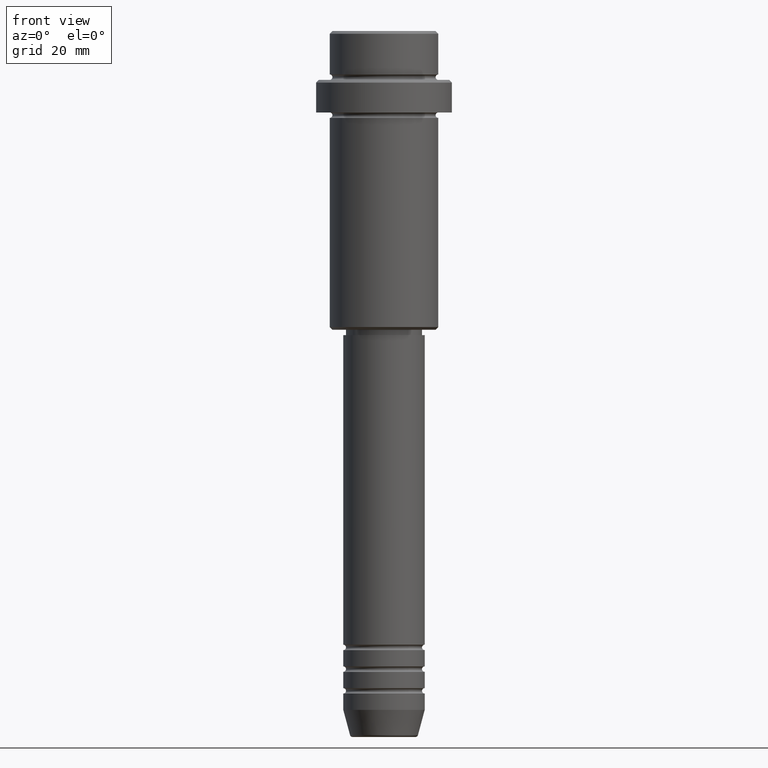
[diagram: clean part render]
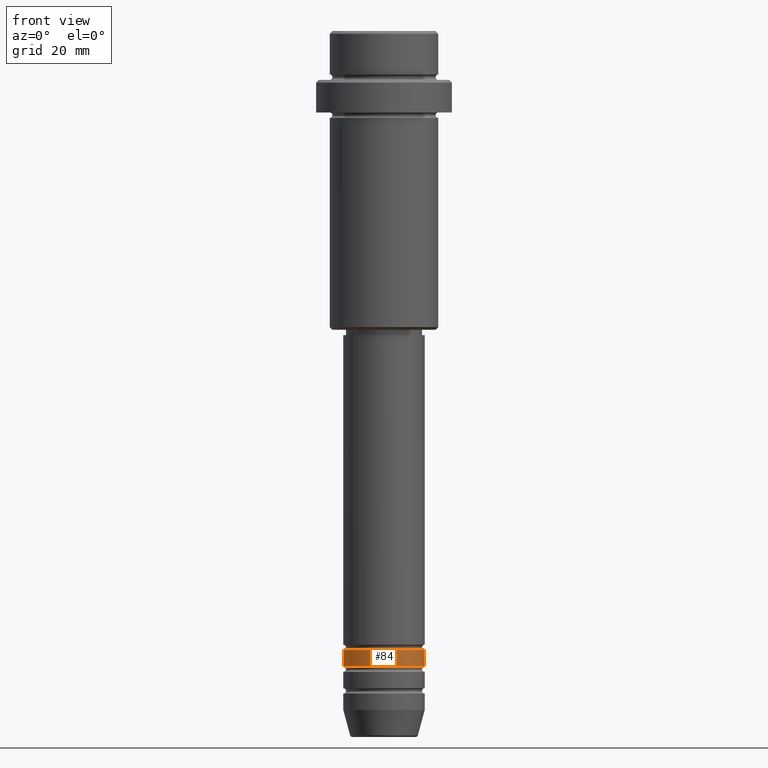
[diagram: same view with one face highlighted and labeled with its STEP entity id]
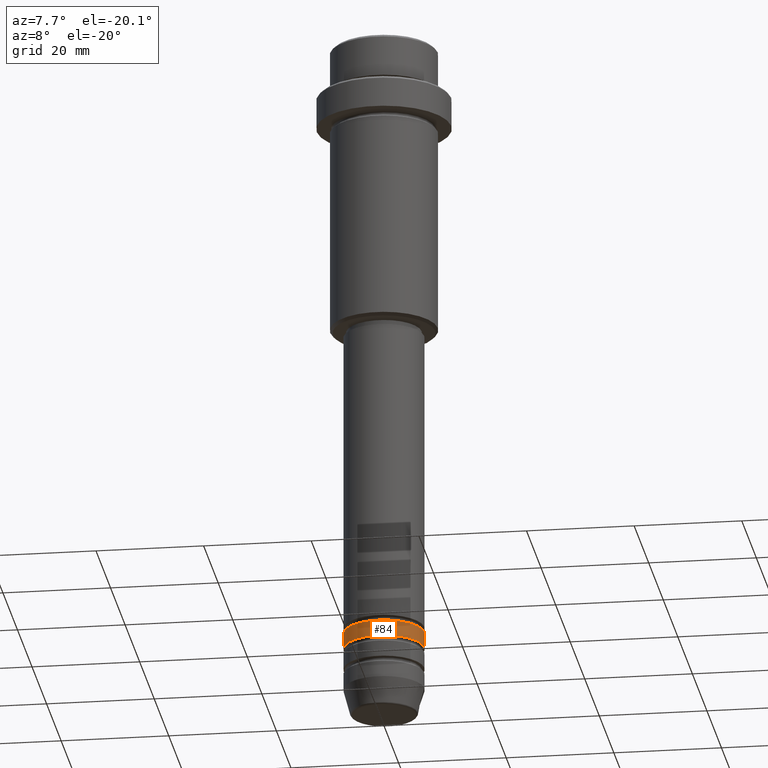
[diagram: same view with one face highlighted and labeled with its STEP entity id]
A machine part, front view. The second image highlights one B-rep face of the part: STEP entity #84.
A second angle (auxiliary view) of the same face is appended — the face is thin or edge-on in the first view.
In plain terms, the highlighted cylindrical surface (partial cylindrical patch) has radius 7.5 mm, axis along (-0, -0, 1).
Its self-contained STEP definition (entity closure, byte-faithful):
#15 = LINE ( 'NONE', #1007, #1323 ) ;
#16 = AXIS2_PLACEMENT_3D ( 'NONE', #203, #426, #1086 ) ;
#57 = CARTESIAN_POINT ( 'NONE',  ( 0.000000000000000000, 0.000000000000000000, -113.9999999999998863 ) ) ;
#84 = ADVANCED_FACE ( 'NONE', ( #1186 ), #1298, .T. ) ;
#102 = DIRECTION ( 'NONE',  ( -0.000000000000000000, -0.000000000000000000, 1.000000000000000000 ) ) ;
#152 = DIRECTION ( 'NONE',  ( -0.000000000000000000, -0.000000000000000000, 1.000000000000000000 ) ) ;
#158 = CARTESIAN_POINT ( 'NONE',  ( -7.500000000000000000, 9.184850993605147944E-16, -113.9999999999998863 ) ) ;
#192 = CIRCLE ( 'NONE', #790, 7.500000000000000000 ) ;
#203 = CARTESIAN_POINT ( 'NONE',  ( 0.000000000000000000, 0.000000000000000000, 0.000000000000000000 ) ) ;
#226 = ORIENTED_EDGE ( 'NONE', *, *, #556, .T. ) ;
#289 = AXIS2_PLACEMENT_3D ( 'NONE', #740, #524, #1289 ) ;
#327 = CARTESIAN_POINT ( 'NONE',  ( 7.500000000000000000, 0.000000000000000000, -113.9999999999998863 ) ) ;
#404 = CIRCLE ( 'NONE', #289, 7.500000000000000000 ) ;
#426 = DIRECTION ( 'NONE',  ( -0.000000000000000000, -0.000000000000000000, 1.000000000000000000 ) ) ;
#524 = DIRECTION ( 'NONE',  ( -0.000000000000000000, -0.000000000000000000, 1.000000000000000000 ) ) ;
#556 = EDGE_CURVE ( 'NONE', #1287, #839, #404, .T. ) ;
#570 = EDGE_LOOP ( 'NONE', ( #1087, #226, #739, #1377 ) ) ;
#606 = DIRECTION ( 'NONE',  ( 1.000000000000000000, 0.000000000000000000, 0.000000000000000000 ) ) ;
#705 = LINE ( 'NONE', #808, #815 ) ;
#739 = ORIENTED_EDGE ( 'NONE', *, *, #1163, .T. ) ;
#740 = CARTESIAN_POINT ( 'NONE',  ( 0.000000000000000000, 0.000000000000000000, -116.9999999999998863 ) ) ;
#783 = EDGE_CURVE ( 'NONE', #1287, #1316, #705, .T. ) ;
#790 = AXIS2_PLACEMENT_3D ( 'NONE', #57, #1139, #606 ) ;
#800 = CARTESIAN_POINT ( 'NONE',  ( -7.500000000000000000, 9.184850993605147944E-16, -116.9999999999998863 ) ) ;
#808 = CARTESIAN_POINT ( 'NONE',  ( -7.500000000000000000, 9.184850993605147944E-16, 0.000000000000000000 ) ) ;
#815 = VECTOR ( 'NONE', #152, 1000.000000000000000 ) ;
#832 = EDGE_CURVE ( 'NONE', #1316, #1164, #192, .T. ) ;
#839 = VERTEX_POINT ( 'NONE', #1365 ) ;
#1007 = CARTESIAN_POINT ( 'NONE',  ( 7.500000000000000000, 0.000000000000000000, 0.000000000000000000 ) ) ;
#1086 = DIRECTION ( 'NONE',  ( 1.000000000000000000, 0.000000000000000000, 0.000000000000000000 ) ) ;
#1087 = ORIENTED_EDGE ( 'NONE', *, *, #783, .F. ) ;
#1139 = DIRECTION ( 'NONE',  ( -0.000000000000000000, -0.000000000000000000, 1.000000000000000000 ) ) ;
#1163 = EDGE_CURVE ( 'NONE', #839, #1164, #15, .T. ) ;
#1164 = VERTEX_POINT ( 'NONE', #327 ) ;
#1186 = FACE_OUTER_BOUND ( 'NONE', #570, .T. ) ;
#1287 = VERTEX_POINT ( 'NONE', #800 ) ;
#1289 = DIRECTION ( 'NONE',  ( 1.000000000000000000, 0.000000000000000000, 0.000000000000000000 ) ) ;
#1298 = CYLINDRICAL_SURFACE ( 'NONE', #16, 7.500000000000000000 ) ;
#1316 = VERTEX_POINT ( 'NONE', #158 ) ;
#1323 = VECTOR ( 'NONE', #102, 1000.000000000000000 ) ;
#1365 = CARTESIAN_POINT ( 'NONE',  ( 7.500000000000000000, 0.000000000000000000, -116.9999999999998863 ) ) ;
#1377 = ORIENTED_EDGE ( 'NONE', *, *, #832, .F. ) ;